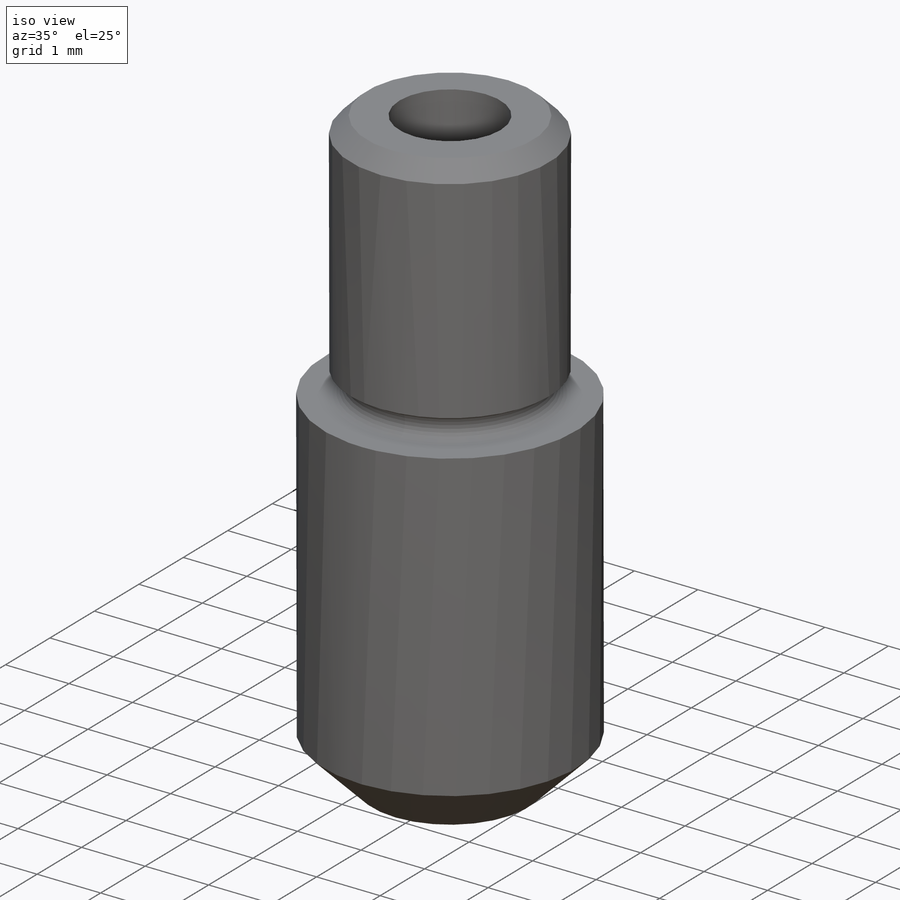
[diagram: iso view]
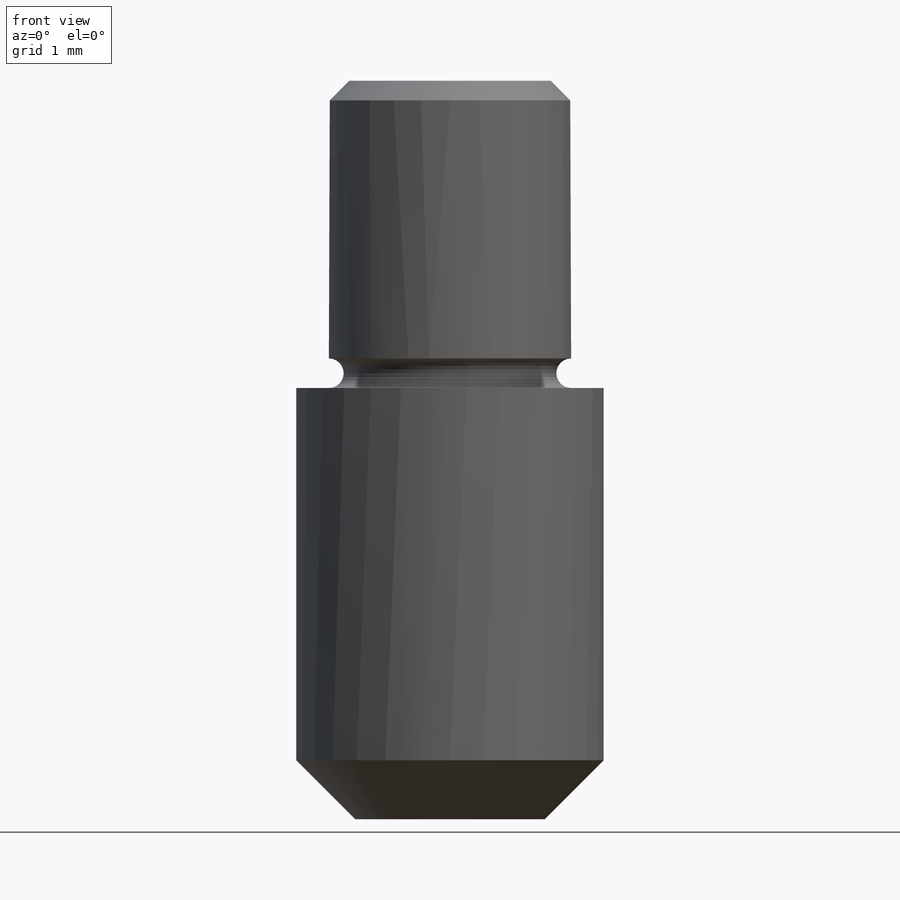
[diagram: front view]
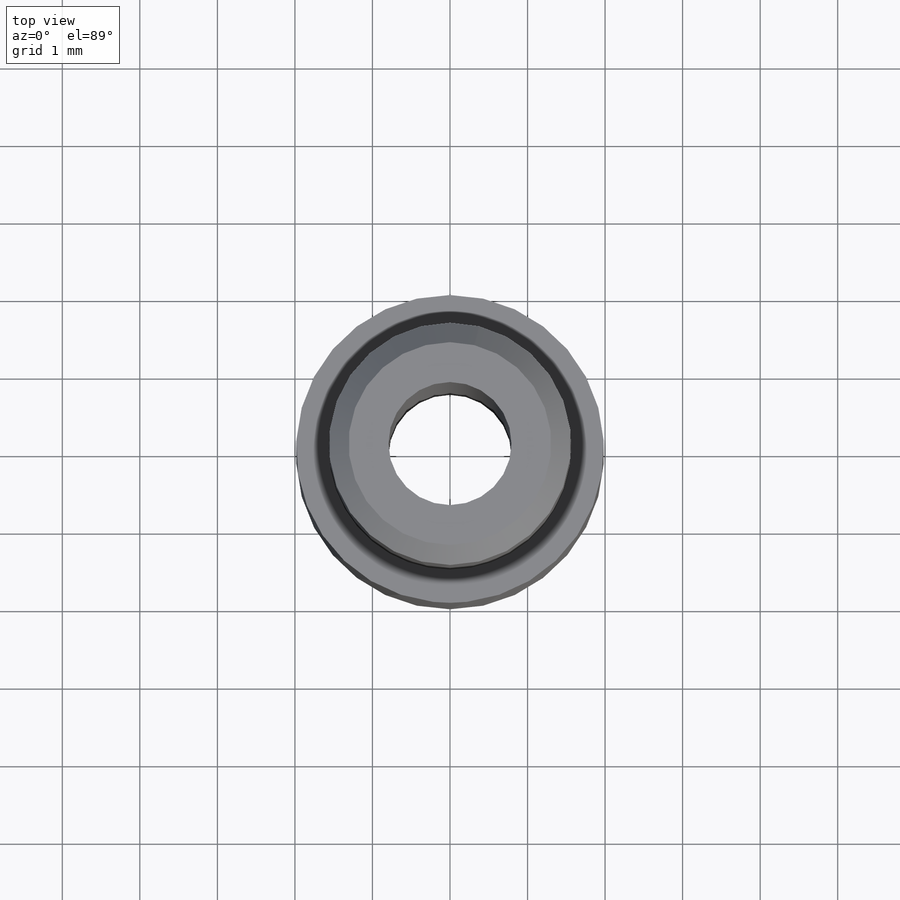
[diagram: top view]
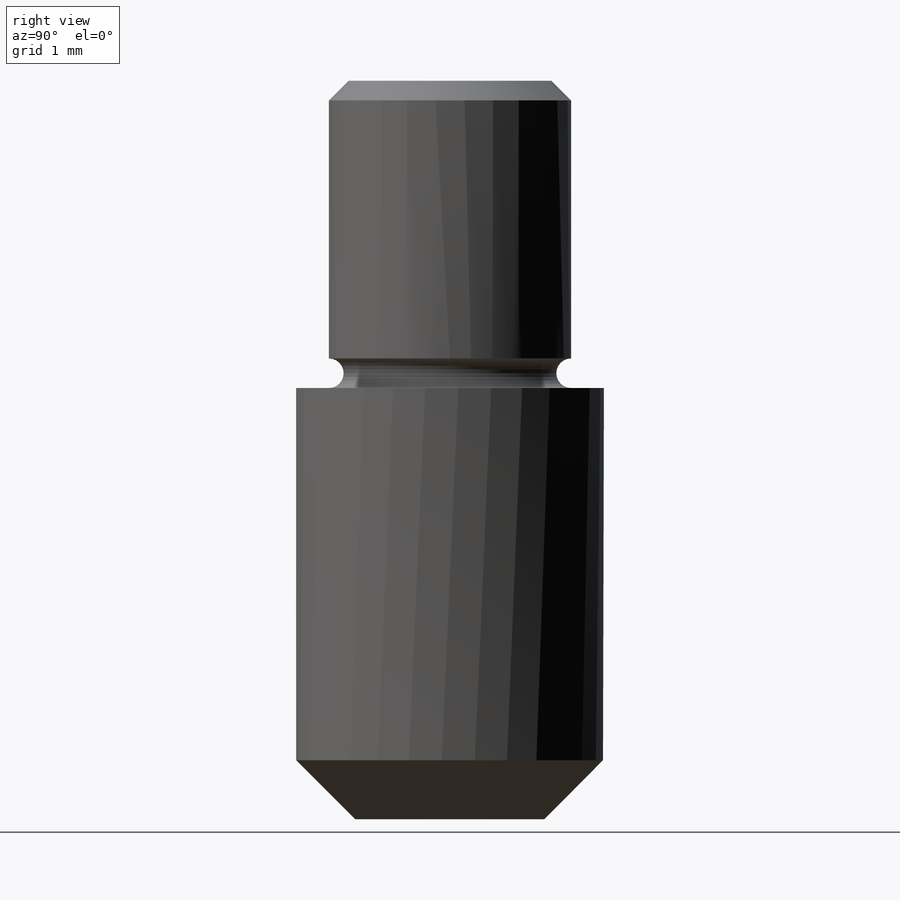
[diagram: right view]
SOLIDWORKS PART (.sldprt)
format: sldprt  version: not decoded by parser v0  size: 282,112 bytes
history: native  units: mm
features: sketch x5, chamfer x2, material x1, extrude x1, cut_extrude x1, cut_revolve x1, hole x1 (+15 scaffold rows collapsed)
feature tree (27):
  scaffold x15  (default folders/planes/origin — collapsed)
  material  "18-8 SS"
  sketch  "Sketch1"  dims[D1=~3.97002mm]
  extrude  "Base-Extrude"  Depth=9.525mm
  sketch  "Sketch2"  dims[D1=3.1242mm]
  cut_extrude  "Cut-Extrude2"  Depth=3.9624mm
  chamfer  "Chamfer1"  Distance=0.254mm Angle=45deg
  chamfer  "Chamfer2"  Distance=0.762mm Angle=45deg
  sketch  "Sketch4"  dims[D1=0.381mm]
  cut_revolve  "Cut-Revolve1"  Angle=360deg
  hole  "1/16 (0.0625) Diameter Hole1"  Diameter=1.5875mm Depth=9.525mm
  sketch  "Sketch6"
  sketch  "Sketch5"  dims[hole-wizard template sketch: 60 standard entries collapsed; hole parameters kept: c18.Thru Hole Depth=9.525mm]
decode coverage: 10 of 11 modeling features carry decoded parameters
note: ~ marks probable driven/reference dimensions
note: suppression state not decoded; provenance and decode notes live in map.json
